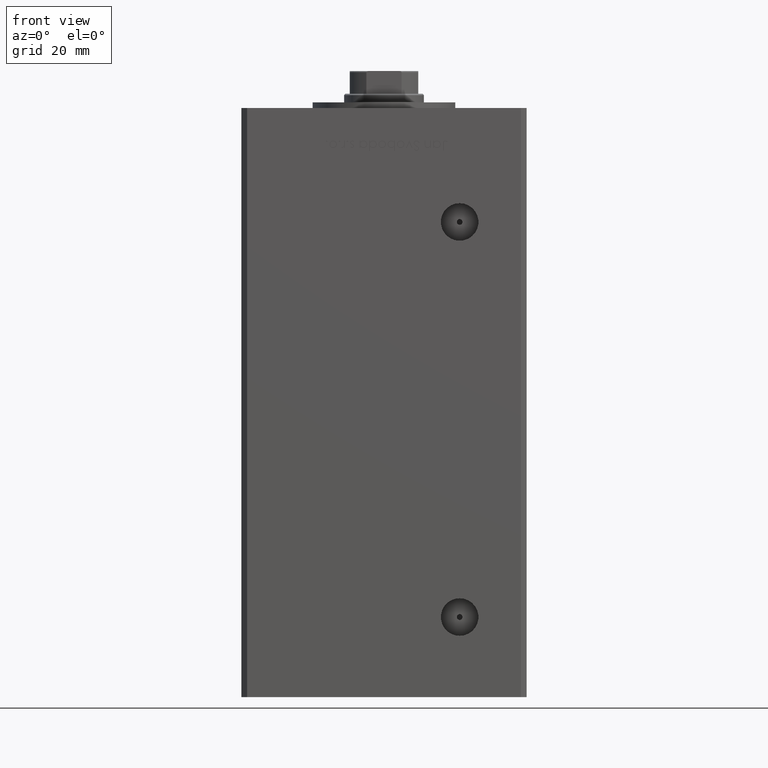
[diagram: clean part render]
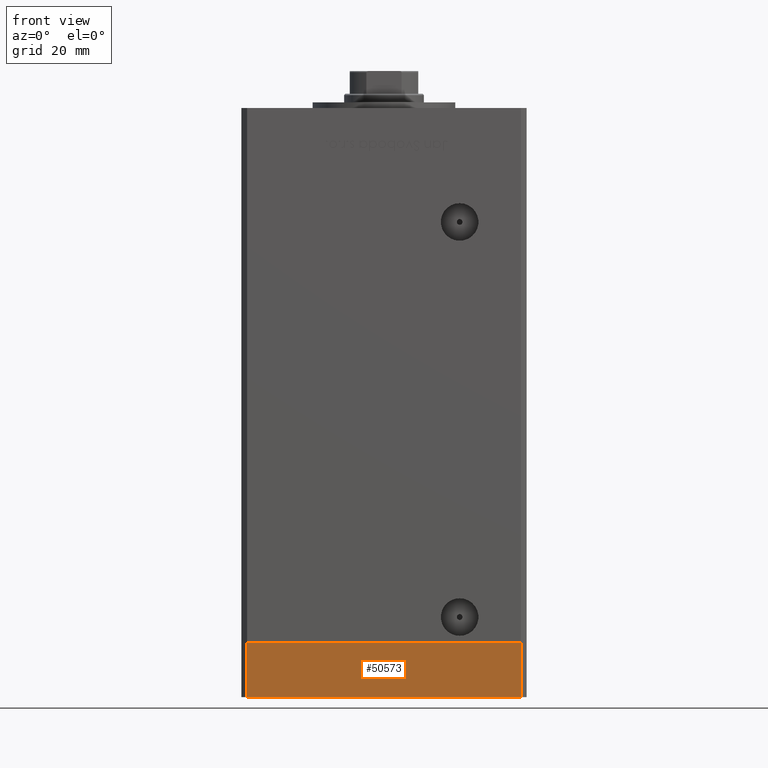
[diagram: same view with one face highlighted and labeled with its STEP entity id]
A machine part, front view. The second image highlights one B-rep face of the part: STEP entity #50573.
In plain terms, the highlighted planar face has unit normal (0, -1, -0).
Its self-contained STEP definition (entity closure, byte-faithful):
#685 = CARTESIAN_POINT ( 'NONE',  ( 47.99999999999999289, -43.50000000000001421, -19.00000000000000000 ) ) ;
#704 = VECTOR ( 'NONE', #22012, 1000.000000000000000 ) ;
#790 = AXIS2_PLACEMENT_3D ( 'NONE', #13178, #13444, #29533 ) ;
#1563 = ORIENTED_EDGE ( 'NONE', *, *, #36440, .T. ) ;
#2017 = VERTEX_POINT ( 'NONE', #685 ) ;
#2365 = VECTOR ( 'NONE', #2595, 1000.000000000000000 ) ;
#2595 = DIRECTION ( 'NONE',  ( 0.000000000000000000, 0.000000000000000000, 1.000000000000000000 ) ) ;
#4849 = VECTOR ( 'NONE', #26061, 1000.000000000000000 ) ;
#6311 = CARTESIAN_POINT ( 'NONE',  ( -47.99999999999999289, -43.50000000000001421, -19.00000000000000000 ) ) ;
#6560 = LINE ( 'NONE', #6311, #2365 ) ;
#11600 = CARTESIAN_POINT ( 'NONE',  ( -47.99999999999999289, -43.50000000000001421, -19.00000000000000000 ) ) ;
#13178 = CARTESIAN_POINT ( 'NONE',  ( -47.99999999999999289, -43.50000000000001421, -19.00000000000000000 ) ) ;
#13444 = DIRECTION ( 'NONE',  ( 0.000000000000000000, -1.000000000000000000, 0.000000000000000000 ) ) ;
#13479 = ORIENTED_EDGE ( 'NONE', *, *, #47352, .T. ) ;
#13931 = LINE ( 'NONE', #38217, #4849 ) ;
#15049 = DIRECTION ( 'NONE',  ( 1.000000000000000000, 0.000000000000000000, 0.000000000000000000 ) ) ;
#19445 = CARTESIAN_POINT ( 'NONE',  ( 47.99999999999999289, -43.50000000000001421, 0.000000000000000000 ) ) ;
#20291 = VERTEX_POINT ( 'NONE', #29087 ) ;
#22012 = DIRECTION ( 'NONE',  ( 0.000000000000000000, 0.000000000000000000, 1.000000000000000000 ) ) ;
#25328 = FACE_OUTER_BOUND ( 'NONE', #40088, .T. ) ;
#26060 = VERTEX_POINT ( 'NONE', #19445 ) ;
#26061 = DIRECTION ( 'NONE',  ( 1.000000000000000000, 0.000000000000000000, 0.000000000000000000 ) ) ;
#29087 = CARTESIAN_POINT ( 'NONE',  ( -47.99999999999999289, -43.50000000000001421, -19.00000000000000000 ) ) ;
#29533 = DIRECTION ( 'NONE',  ( 0.000000000000000000, -0.000000000000000000, -1.000000000000000000 ) ) ;
#33486 = PLANE ( 'NONE',  #790 ) ;
#35005 = VECTOR ( 'NONE', #15049, 1000.000000000000000 ) ;
#35514 = ORIENTED_EDGE ( 'NONE', *, *, #44942, .F. ) ;
#36440 = EDGE_CURVE ( 'NONE', #20291, #2017, #51980, .T. ) ;
#38217 = CARTESIAN_POINT ( 'NONE',  ( -47.99999999999999289, -43.50000000000001421, 0.000000000000000000 ) ) ;
#40088 = EDGE_LOOP ( 'NONE', ( #35514, #41321, #1563, #13479 ) ) ;
#41321 = ORIENTED_EDGE ( 'NONE', *, *, #46645, .F. ) ;
#42835 = LINE ( 'NONE', #46547, #704 ) ;
#44942 = EDGE_CURVE ( 'NONE', #50028, #26060, #13931, .T. ) ;
#45525 = CARTESIAN_POINT ( 'NONE',  ( -47.99999999999999289, -43.50000000000001421, 0.000000000000000000 ) ) ;
#46547 = CARTESIAN_POINT ( 'NONE',  ( 47.99999999999999289, -43.50000000000001421, -19.00000000000000000 ) ) ;
#46645 = EDGE_CURVE ( 'NONE', #20291, #50028, #6560, .T. ) ;
#47352 = EDGE_CURVE ( 'NONE', #2017, #26060, #42835, .T. ) ;
#50028 = VERTEX_POINT ( 'NONE', #45525 ) ;
#50573 = ADVANCED_FACE ( 'NONE', ( #25328 ), #33486, .T. ) ;
#51980 = LINE ( 'NONE', #11600, #35005 ) ;